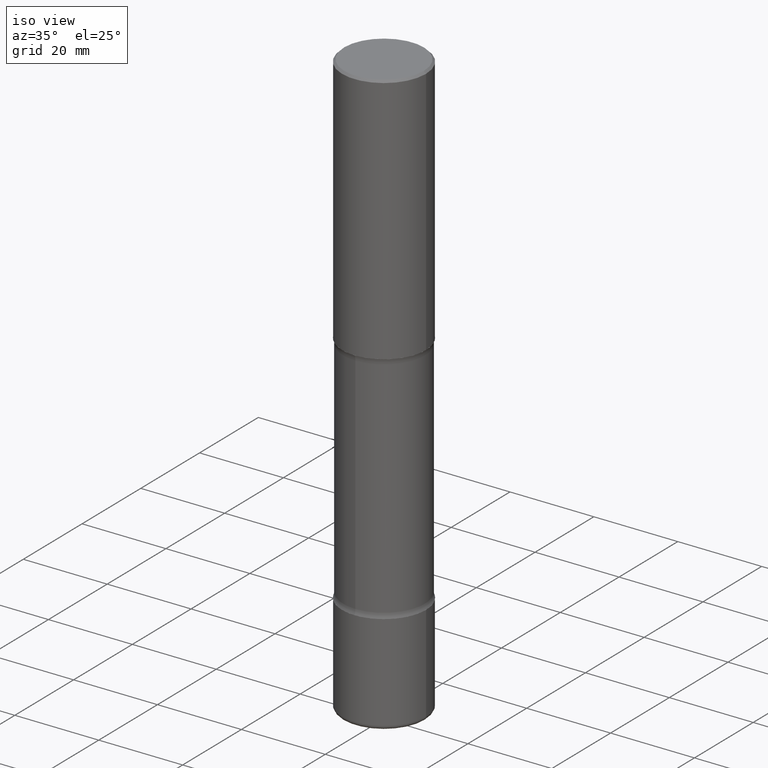
[diagram: clean part render]
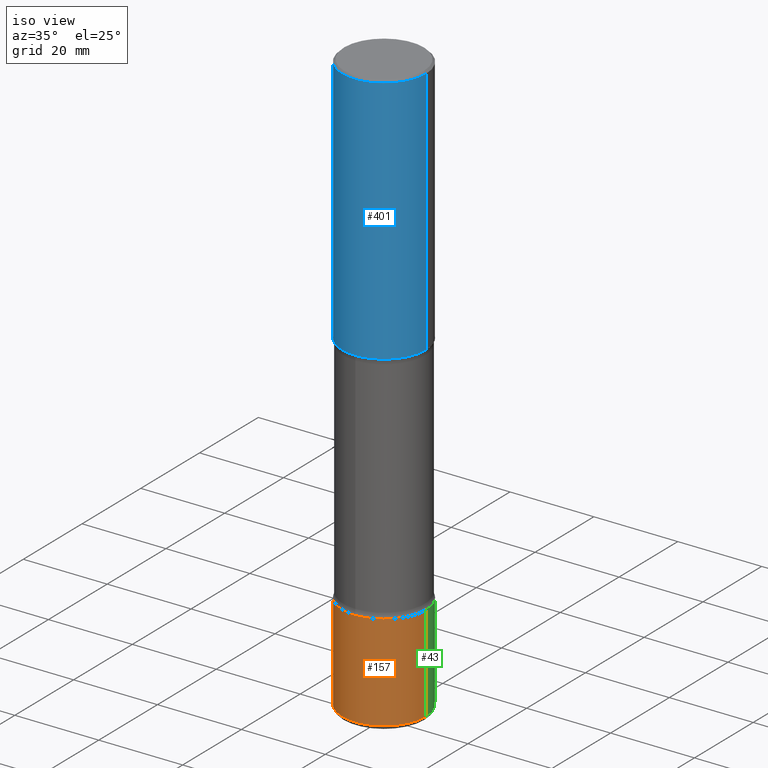
[diagram: same view with three faces highlighted in distinct colors, each labeled with its STEP entity id]
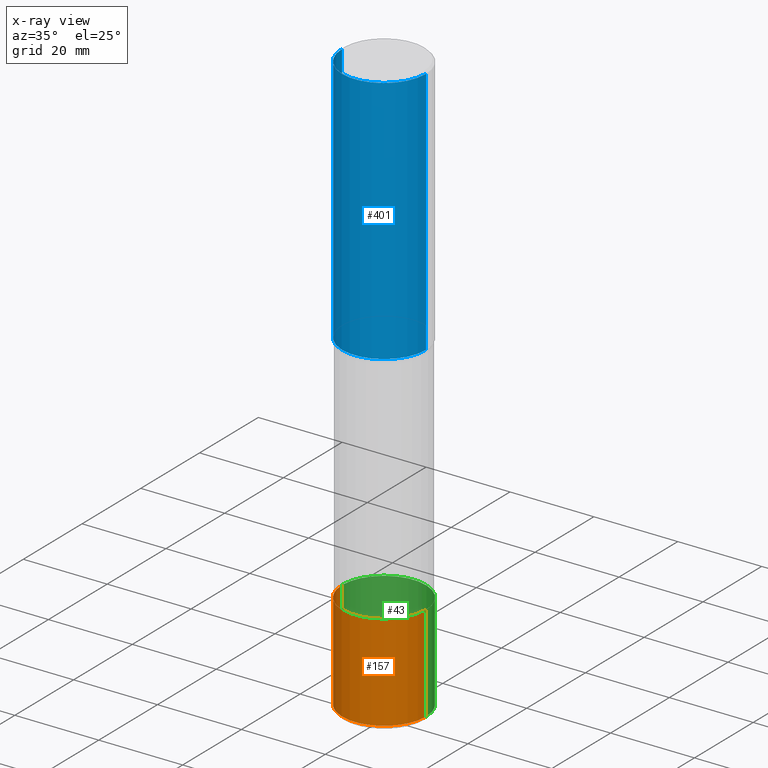
[diagram: x-ray of the same camera — body ghosted, the three highlighted faces saturated]
A machine part, iso view with three faces highlighted in distinct colors.
The next image is the same camera in x-ray (body ghosted, the three faces saturated) — at least one of them is partly hidden behind the body in this view.
Their STEP definitions:

[orange] entity #157 — the highlighted cylindrical surface (partial cylindrical patch) has radius 10 mm, axis along (-0, 0, 1).
#14 = EDGE_CURVE ( 'NONE', #55, #72, #116, .T. ) ;
#18 = CIRCLE ( 'NONE', #337, 0.3937000000000003830 ) ;
#22 = DIRECTION ( 'NONE',  ( -2.445468806185136597E-29, 3.491481338843145583E-15, 1.000000000000000000 ) ) ;
#31 = VERTEX_POINT ( 'NONE', #397 ) ;
#41 = VECTOR ( 'NONE', #220, 39.37007874015748143 ) ;
#49 = FACE_OUTER_BOUND ( 'NONE', #76, .T. ) ;
#55 = VERTEX_POINT ( 'NONE', #492 ) ;
#60 = LINE ( 'NONE', #317, #454 ) ;
#72 = VERTEX_POINT ( 'NONE', #533 ) ;
#76 = EDGE_LOOP ( 'NONE', ( #458, #290, #506, #278 ) ) ;
#101 = EDGE_CURVE ( 'NONE', #55, #31, #526, .T. ) ;
#116 = CIRCLE ( 'NONE', #514, 0.3937000000000002164 ) ;
#128 = CYLINDRICAL_SURFACE ( 'NONE', #166, 0.3937000000000002720 ) ;
#157 = ADVANCED_FACE ( 'NONE', ( #49 ), #128, .T. ) ;
#165 = DIRECTION ( 'NONE',  ( -2.445468806185136597E-29, 3.491481338843145583E-15, 1.000000000000000000 ) ) ;
#166 = AXIS2_PLACEMENT_3D ( 'NONE', #400, #165, #511 ) ;
#178 = EDGE_CURVE ( 'NONE', #72, #333, #60, .T. ) ;
#181 = DIRECTION ( 'NONE',  ( 1.000000000000000000, -6.982962677686265133E-15, 0.000000000000000000 ) ) ;
#182 = DIRECTION ( 'NONE',  ( -2.445468806185136877E-29, 3.491481338843145188E-15, 1.000000000000000000 ) ) ;
#185 = DIRECTION ( 'NONE',  ( 1.000000000000000000, -6.982962677686261977E-15, 0.000000000000000000 ) ) ;
#220 = DIRECTION ( 'NONE',  ( -2.445468806185136877E-29, 3.491481338843145188E-15, 1.000000000000000000 ) ) ;
#255 = CARTESIAN_POINT ( 'NONE',  ( -0.3937000000000002720, 2.797406750687516364E-15, -1.936584745033358137E-29 ) ) ;
#258 = CARTESIAN_POINT ( 'NONE',  ( 1.338258349496754075E-28, -1.910678247868523272E-14, -5.472400000000000375 ) ) ;
#265 = DIRECTION ( 'NONE',  ( -2.445468806185136597E-29, 3.491481338843145583E-15, 1.000000000000000000 ) ) ;
#278 = ORIENTED_EDGE ( 'NONE', *, *, #284, .F. ) ;
#284 = EDGE_CURVE ( 'NONE', #31, #333, #18, .T. ) ;
#290 = ORIENTED_EDGE ( 'NONE', *, *, #14, .T. ) ;
#317 = CARTESIAN_POINT ( 'NONE',  ( 0.3937000000000002720, -2.749192406205085189E-15, 1.919750796630861293E-29 ) ) ;
#326 = CARTESIAN_POINT ( 'NONE',  ( 1.116821149096690103E-28, -1.594524612636276117E-14, -4.566900000000000404 ) ) ;
#333 = VERTEX_POINT ( 'NONE', #524 ) ;
#337 = AXIS2_PLACEMENT_3D ( 'NONE', #326, #22, #185 ) ;
#397 = CARTESIAN_POINT ( 'NONE',  ( -0.3937000000000003830, -1.472860755183648137E-14, -4.566900000000000404 ) ) ;
#400 = CARTESIAN_POINT ( 'NONE',  ( 0.000000000000000000, 0.000000000000000000, 0.000000000000000000 ) ) ;
#454 = VECTOR ( 'NONE', #182, 39.37007874015748143 ) ;
#458 = ORIENTED_EDGE ( 'NONE', *, *, #101, .F. ) ;
#492 = CARTESIAN_POINT ( 'NONE',  ( -0.3937000000000001609, -1.630937572799771557E-14, -5.472400000000000375 ) ) ;
#506 = ORIENTED_EDGE ( 'NONE', *, *, #178, .T. ) ;
#511 = DIRECTION ( 'NONE',  ( 1.000000000000000000, -6.982962677686266711E-15, 4.876176775795935793E-29 ) ) ;
#514 = AXIS2_PLACEMENT_3D ( 'NONE', #258, #265, #181 ) ;
#524 = CARTESIAN_POINT ( 'NONE',  ( 0.3937000000000003830, -1.869443853256784755E-14, -4.566900000000000404 ) ) ;
#526 = LINE ( 'NONE', #255, #41 ) ;
#533 = CARTESIAN_POINT ( 'NONE',  ( 0.3937000000000001609, -2.185597488489031594E-14, -5.472400000000000375 ) ) ;

[blue] entity #401 — the highlighted cylindrical surface (partial cylindrical patch) has radius 10 mm, axis along (-0, 0, 1).
#90 = DIRECTION ( 'NONE',  ( 1.000000000000000000, -6.982962677686265922E-15, 0.000000000000000000 ) ) ;
#93 = VERTEX_POINT ( 'NONE', #481 ) ;
#97 = CARTESIAN_POINT ( 'NONE',  ( -0.3937000000000001054, 2.797406750687515181E-15, -1.936584745033357016E-29 ) ) ;
#135 = CYLINDRICAL_SURFACE ( 'NONE', #179, 0.3937000000000001054 ) ;
#139 = DIRECTION ( 'NONE',  ( 1.000000000000000000, -6.982962677686266711E-15, 0.000000000000000000 ) ) ;
#143 = DIRECTION ( 'NONE',  ( -2.445468806185136597E-29, 3.491481338843145583E-15, 1.000000000000000000 ) ) ;
#151 = CARTESIAN_POINT ( 'NONE',  ( 0.3937000000000000499, -2.770807688499515734E-15, -0.02000000000000008715 ) ) ;
#167 = CIRCLE ( 'NONE', #353, 0.3937000000000002164 ) ;
#179 = AXIS2_PLACEMENT_3D ( 'NONE', #321, #275, #375 ) ;
#180 = EDGE_CURVE ( 'NONE', #336, #416, #246, .T. ) ;
#189 = VERTEX_POINT ( 'NONE', #267 ) ;
#194 = FACE_OUTER_BOUND ( 'NONE', #418, .T. ) ;
#195 = ORIENTED_EDGE ( 'NONE', *, *, #322, .F. ) ;
#204 = VECTOR ( 'NONE', #405, 39.37007874015748143 ) ;
#246 = CIRCLE ( 'NONE', #485, 0.3937000000000000499 ) ;
#266 = ORIENTED_EDGE ( 'NONE', *, *, #294, .T. ) ;
#267 = CARTESIAN_POINT ( 'NONE',  ( 0.3937000000000002164, -1.099676962482036442E-14, -2.362200000000000077 ) ) ;
#274 = DIRECTION ( 'NONE',  ( -2.445468806185136597E-29, 3.491481338843145583E-15, 1.000000000000000000 ) ) ;
#275 = DIRECTION ( 'NONE',  ( -2.445468806185136597E-29, 3.491481338843145583E-15, 1.000000000000000000 ) ) ;
#294 = EDGE_CURVE ( 'NONE', #93, #189, #167, .T. ) ;
#305 = CARTESIAN_POINT ( 'NONE',  ( -0.3937000000000000499, 2.679362779428219918E-15, -0.02000000000000008715 ) ) ;
#308 = DIRECTION ( 'NONE',  ( -2.445468806185136877E-29, 3.491481338843145188E-15, 1.000000000000000000 ) ) ;
#321 = CARTESIAN_POINT ( 'NONE',  ( 0.000000000000000000, 0.000000000000000000, 0.000000000000000000 ) ) ;
#322 = EDGE_CURVE ( 'NONE', #93, #336, #450, .T. ) ;
#336 = VERTEX_POINT ( 'NONE', #305 ) ;
#341 = ORIENTED_EDGE ( 'NONE', *, *, #180, .F. ) ;
#353 = AXIS2_PLACEMENT_3D ( 'NONE', #544, #143, #139 ) ;
#358 = LINE ( 'NONE', #448, #362 ) ;
#362 = VECTOR ( 'NONE', #308, 39.37007874015748143 ) ;
#369 = EDGE_CURVE ( 'NONE', #189, #416, #358, .T. ) ;
#375 = DIRECTION ( 'NONE',  ( 1.000000000000000000, -6.982962677686266711E-15, 4.876176775795935793E-29 ) ) ;
#401 = ADVANCED_FACE ( 'NONE', ( #194 ), #135, .T. ) ;
#405 = DIRECTION ( 'NONE',  ( -2.445468806185136877E-29, 3.491481338843145188E-15, 1.000000000000000000 ) ) ;
#416 = VERTEX_POINT ( 'NONE', #151 ) ;
#418 = EDGE_LOOP ( 'NONE', ( #195, #266, #554, #341 ) ) ;
#448 = CARTESIAN_POINT ( 'NONE',  ( 0.3937000000000001054, -2.749192406205084005E-15, 1.919750796630860452E-29 ) ) ;
#450 = LINE ( 'NONE', #97, #204 ) ;
#481 = CARTESIAN_POINT ( 'NONE',  ( -0.3937000000000002720, -1.361296672008554112E-15, -2.362200000000000077 ) ) ;
#485 = AXIS2_PLACEMENT_3D ( 'NONE', #489, #274, #90 ) ;
#489 = CARTESIAN_POINT ( 'NONE',  ( 4.890937612370294178E-31, -6.982962677686321191E-17, -0.02000000000000008715 ) ) ;
#544 = CARTESIAN_POINT ( 'NONE',  ( 5.776686413970530874E-29, -8.247577218615279626E-15, -2.362200000000000077 ) ) ;
#554 = ORIENTED_EDGE ( 'NONE', *, *, #369, .T. ) ;

[green] entity #43 — the highlighted cylindrical surface (partial cylindrical patch) has radius 10 mm, axis along (-0, 0, 1).
#4 = DIRECTION ( 'NONE',  ( 1.000000000000000000, -6.982962677686265133E-15, 0.000000000000000000 ) ) ;
#31 = VERTEX_POINT ( 'NONE', #397 ) ;
#38 = DIRECTION ( 'NONE',  ( 1.000000000000000000, -6.982962677686261977E-15, 0.000000000000000000 ) ) ;
#41 = VECTOR ( 'NONE', #220, 39.37007874015748143 ) ;
#43 = ADVANCED_FACE ( 'NONE', ( #316 ), #175, .T. ) ;
#53 = CARTESIAN_POINT ( 'NONE',  ( 1.338258349496754075E-28, -1.910678247868523272E-14, -5.472400000000000375 ) ) ;
#55 = VERTEX_POINT ( 'NONE', #492 ) ;
#59 = DIRECTION ( 'NONE',  ( 1.000000000000000000, -6.982962677686266711E-15, 4.876176775795935793E-29 ) ) ;
#60 = LINE ( 'NONE', #317, #454 ) ;
#72 = VERTEX_POINT ( 'NONE', #533 ) ;
#98 = CIRCLE ( 'NONE', #346, 0.3937000000000002164 ) ;
#101 = EDGE_CURVE ( 'NONE', #55, #31, #526, .T. ) ;
#134 = DIRECTION ( 'NONE',  ( -2.445468806185136597E-29, 3.491481338843145583E-15, 1.000000000000000000 ) ) ;
#138 = EDGE_CURVE ( 'NONE', #72, #55, #98, .T. ) ;
#160 = CIRCLE ( 'NONE', #263, 0.3937000000000003830 ) ;
#175 = CYLINDRICAL_SURFACE ( 'NONE', #261, 0.3937000000000002720 ) ;
#178 = EDGE_CURVE ( 'NONE', #72, #333, #60, .T. ) ;
#182 = DIRECTION ( 'NONE',  ( -2.445468806185136877E-29, 3.491481338843145188E-15, 1.000000000000000000 ) ) ;
#186 = ORIENTED_EDGE ( 'NONE', *, *, #138, .T. ) ;
#201 = DIRECTION ( 'NONE',  ( -2.445468806185136597E-29, 3.491481338843145583E-15, 1.000000000000000000 ) ) ;
#202 = EDGE_LOOP ( 'NONE', ( #186, #239, #546, #383 ) ) ;
#206 = CARTESIAN_POINT ( 'NONE',  ( 1.116821149096690103E-28, -1.594524612636276117E-14, -4.566900000000000404 ) ) ;
#220 = DIRECTION ( 'NONE',  ( -2.445468806185136877E-29, 3.491481338843145188E-15, 1.000000000000000000 ) ) ;
#239 = ORIENTED_EDGE ( 'NONE', *, *, #101, .T. ) ;
#255 = CARTESIAN_POINT ( 'NONE',  ( -0.3937000000000002720, 2.797406750687516364E-15, -1.936584745033358137E-29 ) ) ;
#261 = AXIS2_PLACEMENT_3D ( 'NONE', #366, #452, #59 ) ;
#263 = AXIS2_PLACEMENT_3D ( 'NONE', #206, #201, #38 ) ;
#316 = FACE_OUTER_BOUND ( 'NONE', #202, .T. ) ;
#317 = CARTESIAN_POINT ( 'NONE',  ( 0.3937000000000002720, -2.749192406205085189E-15, 1.919750796630861293E-29 ) ) ;
#333 = VERTEX_POINT ( 'NONE', #524 ) ;
#346 = AXIS2_PLACEMENT_3D ( 'NONE', #53, #134, #4 ) ;
#366 = CARTESIAN_POINT ( 'NONE',  ( 0.000000000000000000, 0.000000000000000000, 0.000000000000000000 ) ) ;
#383 = ORIENTED_EDGE ( 'NONE', *, *, #178, .F. ) ;
#397 = CARTESIAN_POINT ( 'NONE',  ( -0.3937000000000003830, -1.472860755183648137E-14, -4.566900000000000404 ) ) ;
#452 = DIRECTION ( 'NONE',  ( -2.445468806185136597E-29, 3.491481338843145583E-15, 1.000000000000000000 ) ) ;
#454 = VECTOR ( 'NONE', #182, 39.37007874015748143 ) ;
#492 = CARTESIAN_POINT ( 'NONE',  ( -0.3937000000000001609, -1.630937572799771557E-14, -5.472400000000000375 ) ) ;
#524 = CARTESIAN_POINT ( 'NONE',  ( 0.3937000000000003830, -1.869443853256784755E-14, -4.566900000000000404 ) ) ;
#526 = LINE ( 'NONE', #255, #41 ) ;
#533 = CARTESIAN_POINT ( 'NONE',  ( 0.3937000000000001609, -2.185597488489031594E-14, -5.472400000000000375 ) ) ;
#535 = EDGE_CURVE ( 'NONE', #333, #31, #160, .T. ) ;
#546 = ORIENTED_EDGE ( 'NONE', *, *, #535, .F. ) ;